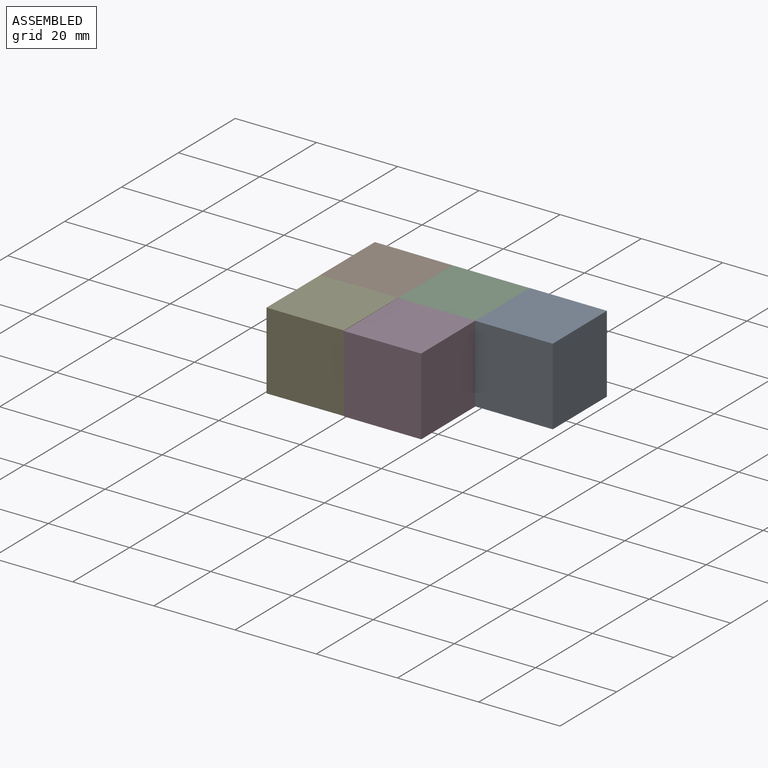
[diagram: assembled view]
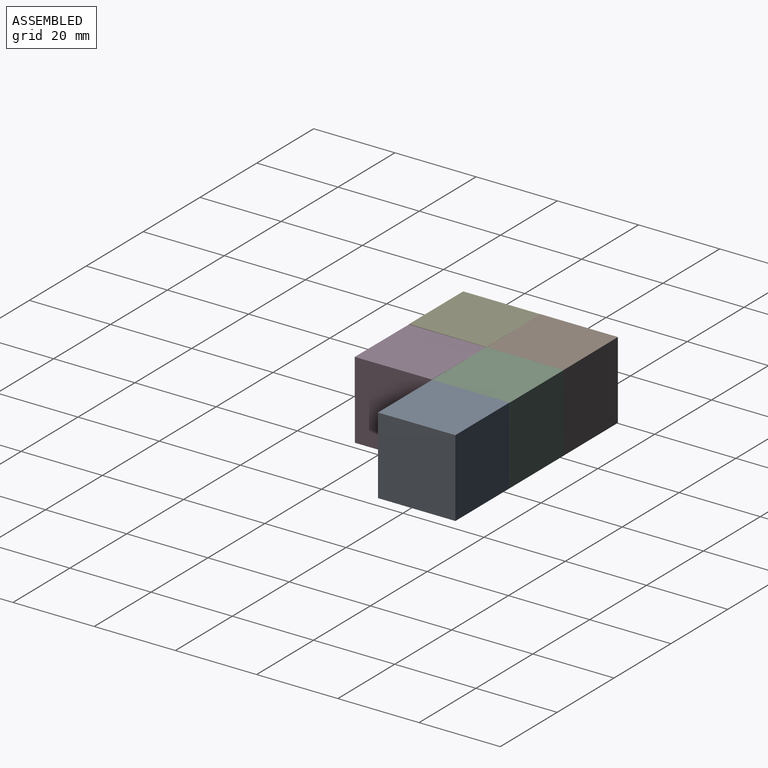
[diagram: assembled view, second angle]
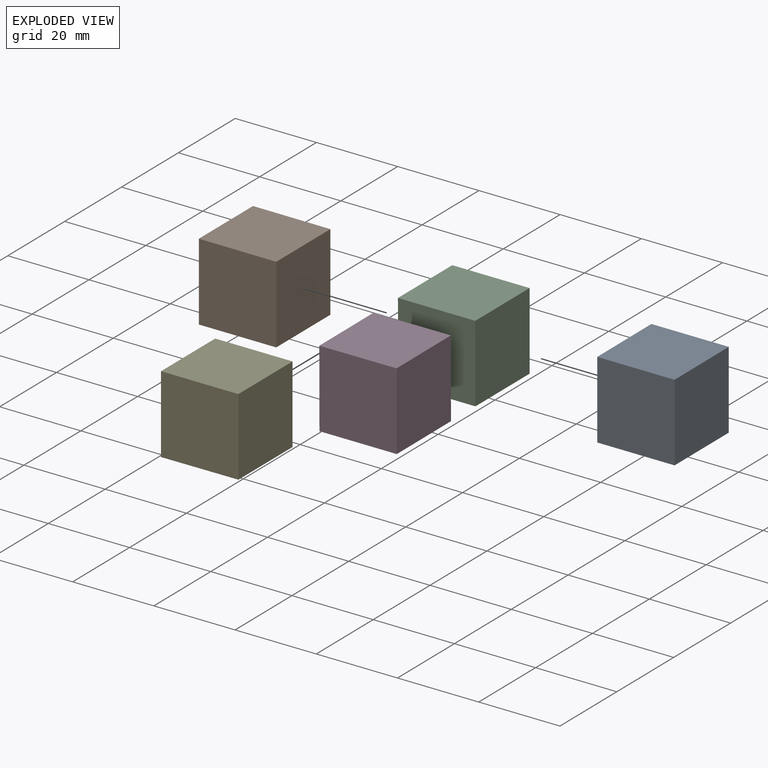
[diagram: exploded view]
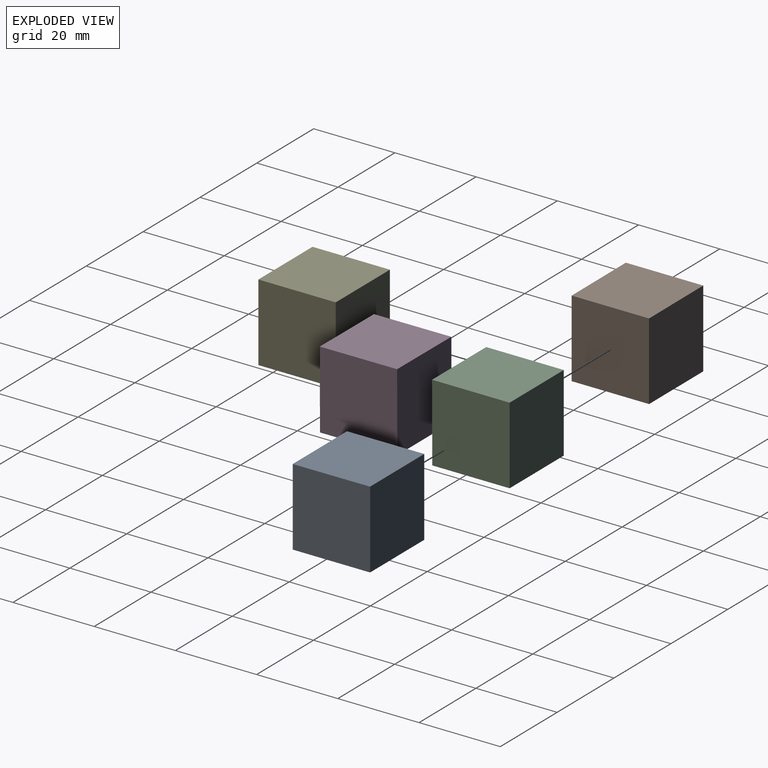
[diagram: exploded view, second angle]
ASSEMBLY  parts=5 mates=4
PART A: 6 faces, bbox 19.1x19.1x19.1 mm
  f0: plane 19.05x19.05mm, normal (0,0,1), area 362.9mm2, adj f1,f3,f4,f5
  f1: plane 19.1x19.05mm, normal (-1,0,0), area 363.9mm2, adj f0,f2,f4,f5
  f2: plane 19.05x19.05mm, normal (0,0,-1), area 362.9mm2, adj f1,f3,f4,f5
  f3: plane 19.05x19.05mm, normal (1,0,0), area 362.9mm2, adj f0,f2,f4,f5
  f4: plane 19.1x19.05mm, normal (0,-1,0), area 363.4mm2, adj f0,f1,f2,f3
  f5: plane 19.1x19.05mm, normal (0,1,0), area 363.4mm2, adj f0,f1,f2,f3
PART B: same geometry as A
PART C: same geometry as A
PART D: same geometry as A
PART E: same geometry as A
PLACE A rot(axis=(0,0,-1),90deg) t=(18.99,-16.94,-1.38)mm
PLACE B t=(-28.99,-7.77,-1.36)mm fixed
PLACE C rot(axis=(0.58,0.58,-0.58),120deg) t=(-0.06,-17.08,-0.82)mm
PLACE D rot(axis=(0,0,1),180deg) t=(-9.24,-45.88,-1.44)mm
PLACE E rot(axis=(1,0,0),180deg) t=(-28.99,-45.87,-0.94)mm
MATE fastened C.f5 <-> A.f4  axis (1,0,0) through (-0.06,-17.29,-1.16)mm
MATE fastened B.f3 <-> C.f4  axis (1,0,0) through (-19.11,-17.29,-1.16)mm
MATE fastened C.f0 <-> D.f4  axis (0,-1,0) through (-9.59,-26.83,-1.17)mm
MATE fastened B.f4 <-> E.f4  axis (0,-1,0) through (-28.64,-26.82,-1.15)mm
